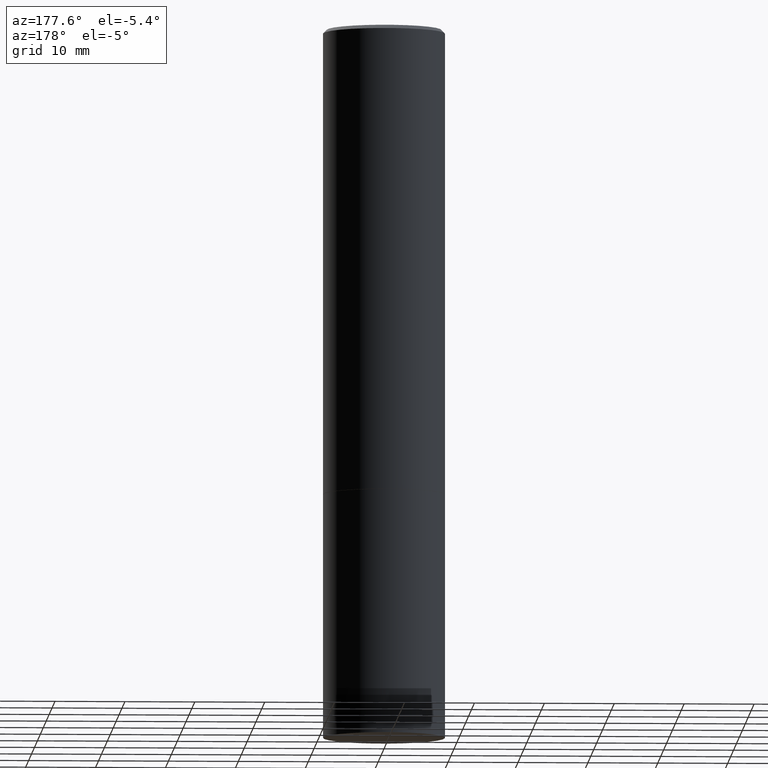
[diagram: clean part render]
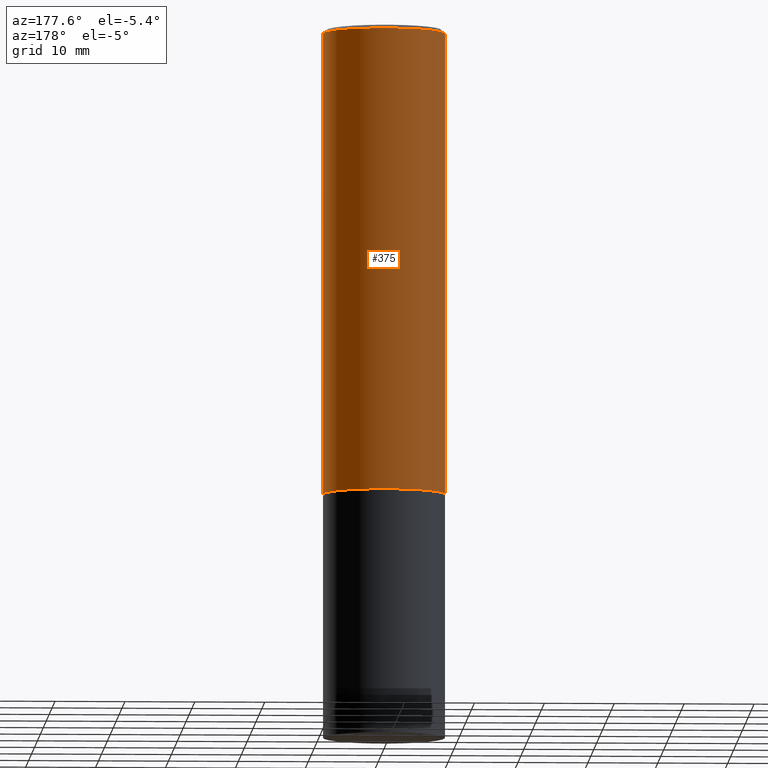
[diagram: same view with one face highlighted and labeled with its STEP entity id]
A machine part, auxiliary view. The second image highlights one B-rep face of the part: STEP entity #375.
In plain terms, the highlighted cylindrical surface (partial cylindrical patch) has radius 8.7312 mm, axis along (-0, 0, 1).
Its self-contained STEP definition (entity closure, byte-faithful):
#7 = ORIENTED_EDGE ( 'NONE', *, *, #37, .T. ) ;
#28 = VERTEX_POINT ( 'NONE', #166 ) ;
#37 = EDGE_CURVE ( 'NONE', #151, #341, #339, .T. ) ;
#40 = VECTOR ( 'NONE', #373, 39.37007874015748143 ) ;
#54 = CARTESIAN_POINT ( 'NONE',  ( 6.416910147429799085E-29, -9.161647033124413605E-15, -2.624000000000000110 ) ) ;
#55 = AXIS2_PLACEMENT_3D ( 'NONE', #156, #61, #60 ) ;
#58 = VERTEX_POINT ( 'NONE', #102 ) ;
#60 = DIRECTION ( 'NONE',  ( 1.000000000000000000, -6.982962677686267499E-15, 4.876176775795935232E-29 ) ) ;
#61 = DIRECTION ( 'NONE',  ( -2.445468806185136597E-29, 3.491481338843145583E-15, 1.000000000000000000 ) ) ;
#72 = AXIS2_PLACEMENT_3D ( 'NONE', #150, #352, #356 ) ;
#99 = CARTESIAN_POINT ( 'NONE',  ( 0.3437499999999998335, -2.400393420454653393E-15, 1.676185766679852018E-29 ) ) ;
#102 = CARTESIAN_POINT ( 'NONE',  ( 0.3437500000000000000, -1.156204045357906700E-14, -2.624000000000000110 ) ) ;
#117 = DIRECTION ( 'NONE',  ( -2.445468806185136877E-29, 3.491481338843145188E-15, 1.000000000000000000 ) ) ;
#129 = CARTESIAN_POINT ( 'NONE',  ( -0.3437499999999997224, 2.330563793677788911E-15, -0.02000000000000009409 ) ) ;
#133 = LINE ( 'NONE', #99, #145 ) ;
#145 = VECTOR ( 'NONE', #117, 39.37007874015748143 ) ;
#150 = CARTESIAN_POINT ( 'NONE',  ( 4.890937612370296805E-31, -6.982962677686323656E-17, -0.02000000000000009409 ) ) ;
#151 = VERTEX_POINT ( 'NONE', #250 ) ;
#156 = CARTESIAN_POINT ( 'NONE',  ( 0.000000000000000000, 0.000000000000000000, 0.000000000000000000 ) ) ;
#159 = EDGE_LOOP ( 'NONE', ( #305, #7, #256, #255 ) ) ;
#166 = CARTESIAN_POINT ( 'NONE',  ( 0.3437499999999997224, -2.428125813510825301E-15, -0.02000000000000009409 ) ) ;
#184 = DIRECTION ( 'NONE',  ( -2.445468806185136597E-29, 3.491481338843145583E-15, 1.000000000000000000 ) ) ;
#247 = EDGE_CURVE ( 'NONE', #58, #151, #327, .T. ) ;
#250 = CARTESIAN_POINT ( 'NONE',  ( -0.3437500000000000000, -2.173247675775292485E-15, -2.624000000000000110 ) ) ;
#254 = DIRECTION ( 'NONE',  ( 1.000000000000000000, -6.982962677686263555E-15, 0.000000000000000000 ) ) ;
#255 = ORIENTED_EDGE ( 'NONE', *, *, #278, .F. ) ;
#256 = ORIENTED_EDGE ( 'NONE', *, *, #347, .F. ) ;
#258 = CARTESIAN_POINT ( 'NONE',  ( -0.3437499999999998335, 2.442490654175343206E-15, -1.690883937275123074E-29 ) ) ;
#269 = CIRCLE ( 'NONE', #72, 0.3437499999999997224 ) ;
#278 = EDGE_CURVE ( 'NONE', #58, #28, #133, .T. ) ;
#291 = AXIS2_PLACEMENT_3D ( 'NONE', #54, #184, #254 ) ;
#305 = ORIENTED_EDGE ( 'NONE', *, *, #247, .T. ) ;
#323 = FACE_OUTER_BOUND ( 'NONE', #159, .T. ) ;
#327 = CIRCLE ( 'NONE', #291, 0.3437500000000000000 ) ;
#335 = CYLINDRICAL_SURFACE ( 'NONE', #55, 0.3437499999999998335 ) ;
#339 = LINE ( 'NONE', #258, #40 ) ;
#341 = VERTEX_POINT ( 'NONE', #129 ) ;
#347 = EDGE_CURVE ( 'NONE', #28, #341, #269, .T. ) ;
#352 = DIRECTION ( 'NONE',  ( -2.445468806185136597E-29, 3.491481338843145583E-15, 1.000000000000000000 ) ) ;
#356 = DIRECTION ( 'NONE',  ( 1.000000000000000000, -6.982962677686266711E-15, 0.000000000000000000 ) ) ;
#373 = DIRECTION ( 'NONE',  ( -2.445468806185136877E-29, 3.491481338843145188E-15, 1.000000000000000000 ) ) ;
#375 = ADVANCED_FACE ( 'NONE', ( #323 ), #335, .T. ) ;